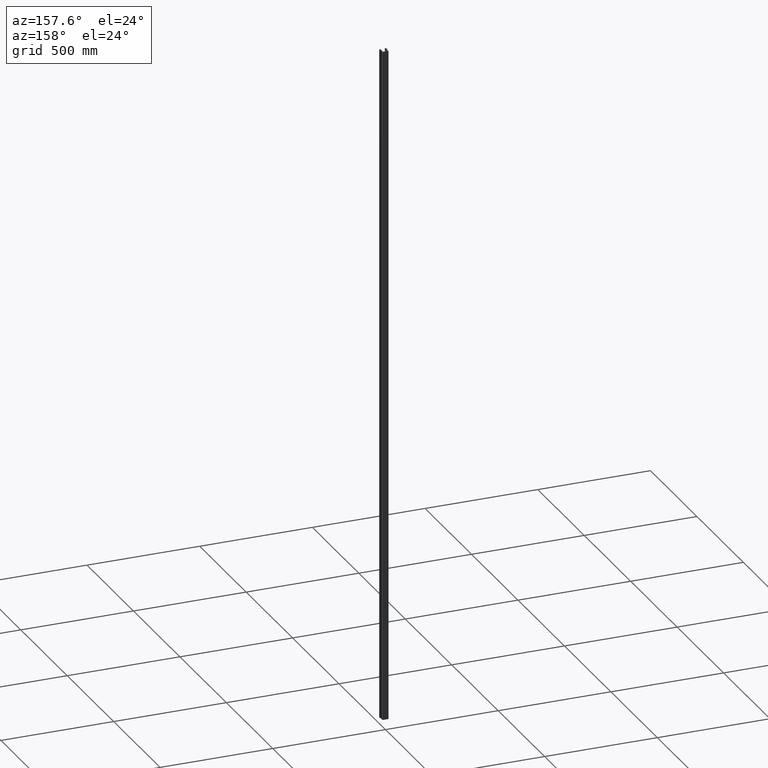
[diagram: clean part render]
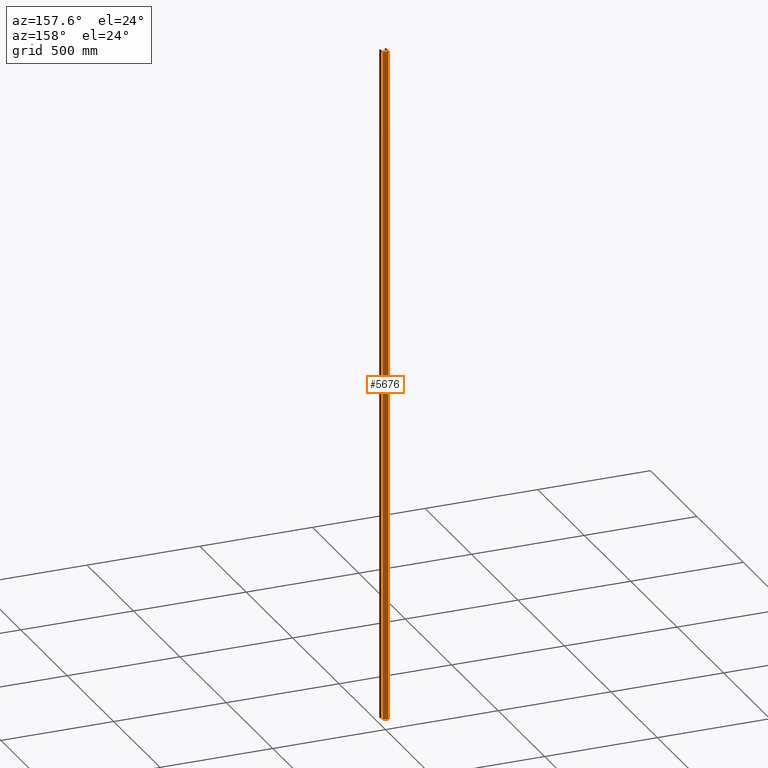
[diagram: same view with one face highlighted and labeled with its STEP entity id]
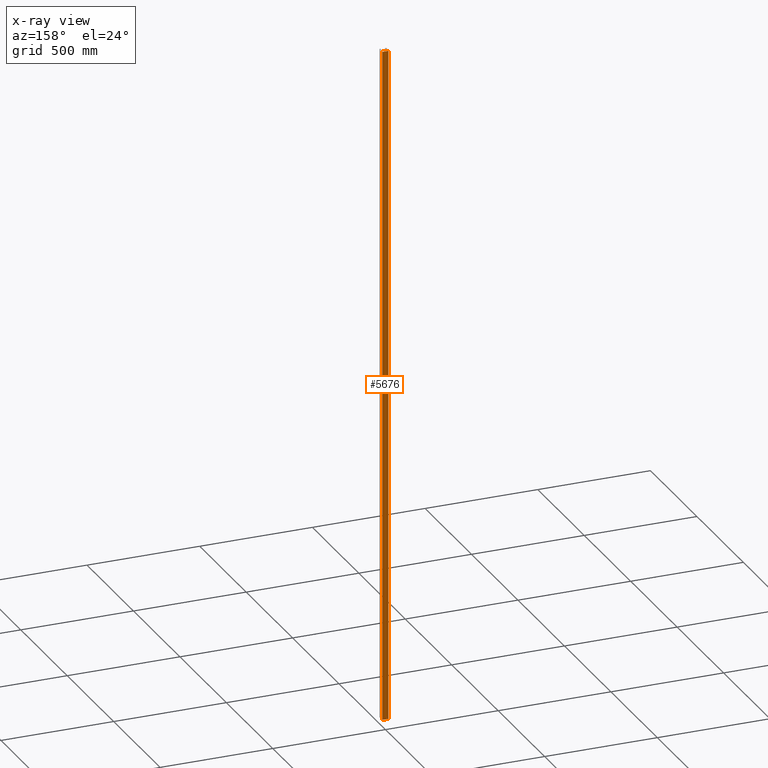
[diagram: x-ray of the same camera — body ghosted, the highlighted face saturated]
A machine part, auxiliary view. The second image highlights one B-rep face of the part: STEP entity #5676.
The next image is the same camera in x-ray: the body ghosted, the highlighted face saturated — about 0% of this face is hidden behind the body in this view.
In plain terms, the highlighted planar face has unit normal (0, 1, 0).
Its self-contained STEP definition (entity closure, byte-faithful):
#88 = LINE ( 'NONE', #1869, #17484 ) ;
#247 = ORIENTED_EDGE ( 'NONE', *, *, #13644, .F. ) ;
#408 = DIRECTION ( 'NONE',  ( -0.000000000000000000, -0.000000000000000000, -1.000000000000000000 ) ) ;
#1321 = DIRECTION ( 'NONE',  ( 0.000000000000000000, 0.000000000000000000, -1.000000000000000000 ) ) ;
#1869 = CARTESIAN_POINT ( 'NONE',  ( -13.49999999889548619, 0.000000000000000000, 1500.000000000000000 ) ) ;
#3108 = LINE ( 'NONE', #7087, #4503 ) ;
#3263 = DIRECTION ( 'NONE',  ( 0.000000000000000000, 1.000000000000000000, 0.000000000000000000 ) ) ;
#3494 = VERTEX_POINT ( 'NONE', #7175 ) ;
#3514 = LINE ( 'NONE', #11835, #14931 ) ;
#4503 = VECTOR ( 'NONE', #1321, 1000.000000000000000 ) ;
#5178 = CARTESIAN_POINT ( 'NONE',  ( -13.49999999889548619, 0.000000000000000000, 1500.000000000000000 ) ) ;
#5340 = VERTEX_POINT ( 'NONE', #9088 ) ;
#5676 = ADVANCED_FACE ( 'NONE', ( #10610 ), #9339, .T. ) ;
#6342 = VERTEX_POINT ( 'NONE', #5178 ) ;
#6505 = ORIENTED_EDGE ( 'NONE', *, *, #10989, .T. ) ;
#7087 = CARTESIAN_POINT ( 'NONE',  ( 13.49999999889548619, 1.653273178713662662E-15, 1500.000000000000000 ) ) ;
#7175 = CARTESIAN_POINT ( 'NONE',  ( -13.49999999889548619, 0.000000000000000000, -1500.000000000000000 ) ) ;
#9088 = CARTESIAN_POINT ( 'NONE',  ( 13.49999999889548619, 1.653273178713662662E-15, 1500.000000000000000 ) ) ;
#9339 = PLANE ( 'NONE',  #18376 ) ;
#9750 = EDGE_LOOP ( 'NONE', ( #247, #14218, #6505, #18473 ) ) ;
#9804 = CARTESIAN_POINT ( 'NONE',  ( 13.49999999889548619, 1.653273178713662662E-15, -1500.000000000000000 ) ) ;
#10610 = FACE_OUTER_BOUND ( 'NONE', #9750, .T. ) ;
#10659 = CARTESIAN_POINT ( 'NONE',  ( -13.49999999889548619, 0.000000000000000000, 1500.000000000000000 ) ) ;
#10989 = EDGE_CURVE ( 'NONE', #6342, #5340, #88, .T. ) ;
#11200 = VECTOR ( 'NONE', #12328, 1000.000000000000000 ) ;
#11835 = CARTESIAN_POINT ( 'NONE',  ( -13.49999999889548619, 0.000000000000000000, 1500.000000000000000 ) ) ;
#12328 = DIRECTION ( 'NONE',  ( 1.000000000000000000, 0.000000000000000000, 0.000000000000000000 ) ) ;
#12877 = EDGE_CURVE ( 'NONE', #5340, #14752, #3108, .T. ) ;
#13644 = EDGE_CURVE ( 'NONE', #3494, #14752, #16565, .T. ) ;
#13990 = EDGE_CURVE ( 'NONE', #6342, #3494, #3514, .T. ) ;
#14218 = ORIENTED_EDGE ( 'NONE', *, *, #13990, .F. ) ;
#14752 = VERTEX_POINT ( 'NONE', #9804 ) ;
#14931 = VECTOR ( 'NONE', #408, 1000.000000000000000 ) ;
#15339 = DIRECTION ( 'NONE',  ( 0.000000000000000000, -0.000000000000000000, 1.000000000000000000 ) ) ;
#15423 = CARTESIAN_POINT ( 'NONE',  ( -13.49999999889548619, 0.000000000000000000, -1500.000000000000000 ) ) ;
#16565 = LINE ( 'NONE', #15423, #11200 ) ;
#17484 = VECTOR ( 'NONE', #18005, 1000.000000000000000 ) ;
#18005 = DIRECTION ( 'NONE',  ( 1.000000000000000000, 0.000000000000000000, 0.000000000000000000 ) ) ;
#18376 = AXIS2_PLACEMENT_3D ( 'NONE', #10659, #3263, #15339 ) ;
#18473 = ORIENTED_EDGE ( 'NONE', *, *, #12877, .T. ) ;